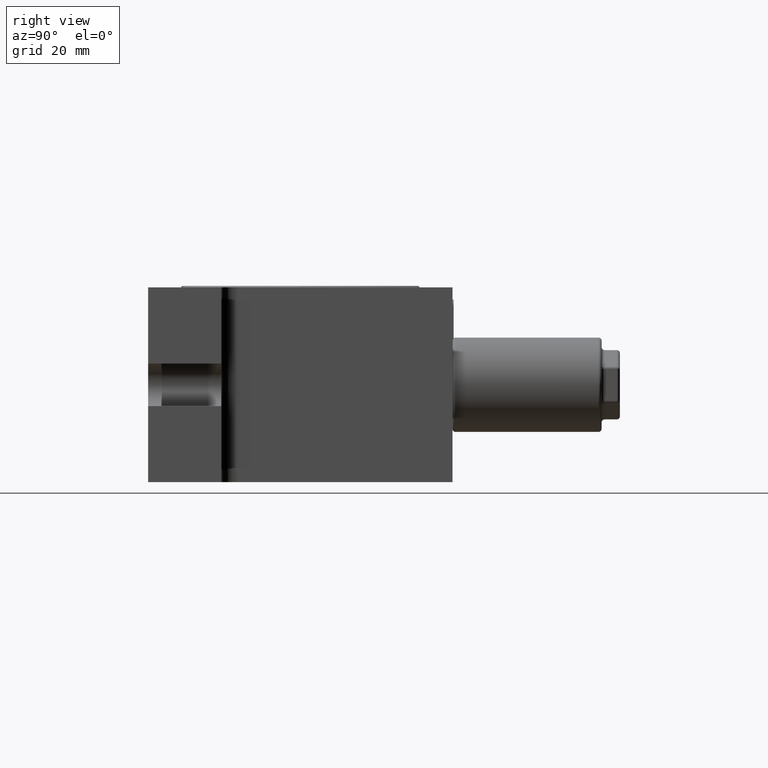
[diagram: clean part render]
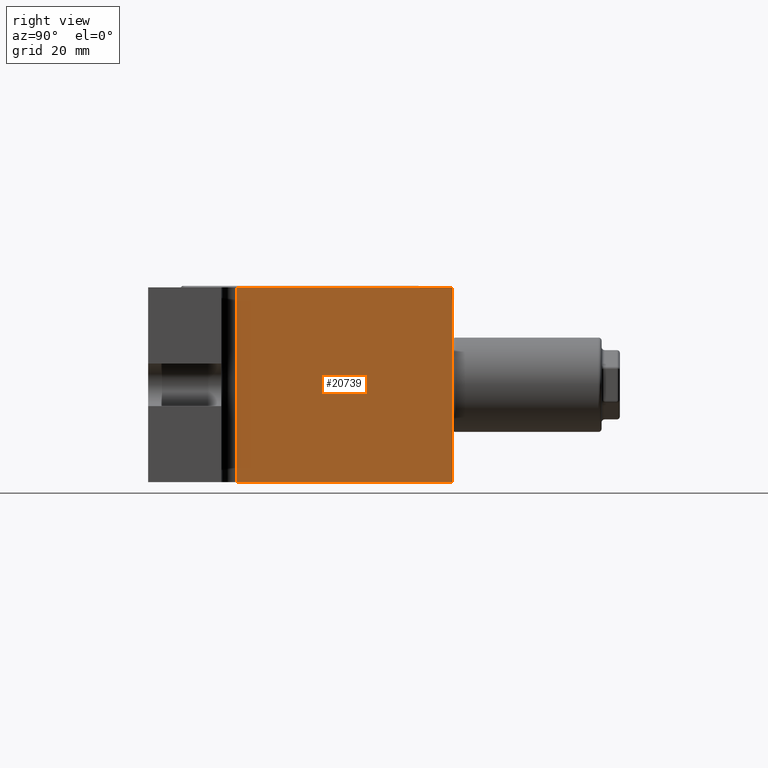
[diagram: same view with one face highlighted and labeled with its STEP entity id]
A machine part, right view. The second image highlights one B-rep face of the part: STEP entity #20739.
In plain terms, the highlighted planar face has unit normal (-1, 0, -0).
Its self-contained STEP definition (entity closure, byte-faithful):
#405 = DIRECTION ( 'NONE',  ( -0.0000000000000000000, -0.0000000000000000000, 1.000000000000000000 ) ) ;
#1236 = EDGE_CURVE ( 'NONE', #9733, #3219, #3120, .T. ) ;
#1534 = ORIENTED_EDGE ( 'NONE', *, *, #12271, .T. ) ;
#1645 = CARTESIAN_POINT ( 'NONE',  ( 25.00000000000001400, 24.99999999999999600, -16.00000000000000000 ) ) ;
#2945 = VERTEX_POINT ( 'NONE', #7633 ) ;
#3120 = LINE ( 'NONE', #1645, #4372 ) ;
#3219 = VERTEX_POINT ( 'NONE', #21706 ) ;
#3257 = VECTOR ( 'NONE', #405, 1000.000000000000000 ) ;
#3262 = VECTOR ( 'NONE', #16569, 1000.000000000000000 ) ;
#4165 = PLANE ( 'NONE',  #12187 ) ;
#4372 = VECTOR ( 'NONE', #21329, 1000.000000000000000 ) ;
#5036 = CARTESIAN_POINT ( 'NONE',  ( 25.00000000000001400, -10.50000000000000400, -16.00000000000000000 ) ) ;
#7309 = LINE ( 'NONE', #8112, #3257 ) ;
#7633 = CARTESIAN_POINT ( 'NONE',  ( 25.00000000000001400, 24.99999999999999600, 16.00000000000000000 ) ) ;
#8112 = CARTESIAN_POINT ( 'NONE',  ( 25.00000000000001400, 24.99999999999999600, -16.00000000000000000 ) ) ;
#8386 = EDGE_LOOP ( 'NONE', ( #15548, #1534, #17783, #19856 ) ) ;
#8850 = VECTOR ( 'NONE', #11078, 1000.000000000000000 ) ;
#9733 = VERTEX_POINT ( 'NONE', #18829 ) ;
#10546 = CARTESIAN_POINT ( 'NONE',  ( 25.00000000000001400, 24.99999999999999600, 16.00000000000000000 ) ) ;
#11078 = DIRECTION ( 'NONE',  ( -0.0000000000000000000, -0.0000000000000000000, -1.000000000000000000 ) ) ;
#12187 = AXIS2_PLACEMENT_3D ( 'NONE', #22280, #24213, #12469 ) ;
#12271 = EDGE_CURVE ( 'NONE', #15229, #3219, #13501, .T. ) ;
#12469 = DIRECTION ( 'NONE',  ( -0.0000000000000000000, 0.0000000000000000000, 1.000000000000000000 ) ) ;
#13501 = LINE ( 'NONE', #5036, #8850 ) ;
#14648 = CARTESIAN_POINT ( 'NONE',  ( 25.00000000000001400, -10.50000000000000500, 16.00000000000000000 ) ) ;
#15229 = VERTEX_POINT ( 'NONE', #14648 ) ;
#15548 = ORIENTED_EDGE ( 'NONE', *, *, #19640, .T. ) ;
#16569 = DIRECTION ( 'NONE',  ( 0.0000000000000000000, -1.000000000000000000, 0.0000000000000000000 ) ) ;
#17783 = ORIENTED_EDGE ( 'NONE', *, *, #1236, .F. ) ;
#17881 = FACE_OUTER_BOUND ( 'NONE', #8386, .T. ) ;
#18829 = CARTESIAN_POINT ( 'NONE',  ( 25.00000000000001400, 24.99999999999999600, -16.00000000000000000 ) ) ;
#19213 = LINE ( 'NONE', #10546, #3262 ) ;
#19640 = EDGE_CURVE ( 'NONE', #2945, #15229, #19213, .T. ) ;
#19856 = ORIENTED_EDGE ( 'NONE', *, *, #24125, .T. ) ;
#20739 = ADVANCED_FACE ( 'NONE', ( #17881 ), #4165, .F. ) ;
#21329 = DIRECTION ( 'NONE',  ( 0.0000000000000000000, -1.000000000000000000, 0.0000000000000000000 ) ) ;
#21706 = CARTESIAN_POINT ( 'NONE',  ( 25.00000000000001400, -10.50000000000000500, -16.00000000000000000 ) ) ;
#22280 = CARTESIAN_POINT ( 'NONE',  ( 25.00000000000001400, 24.99999999999999600, -16.00000000000000000 ) ) ;
#24125 = EDGE_CURVE ( 'NONE', #9733, #2945, #7309, .T. ) ;
#24213 = DIRECTION ( 'NONE',  ( -1.000000000000000000, 0.0000000000000000000, -0.0000000000000000000 ) ) ;